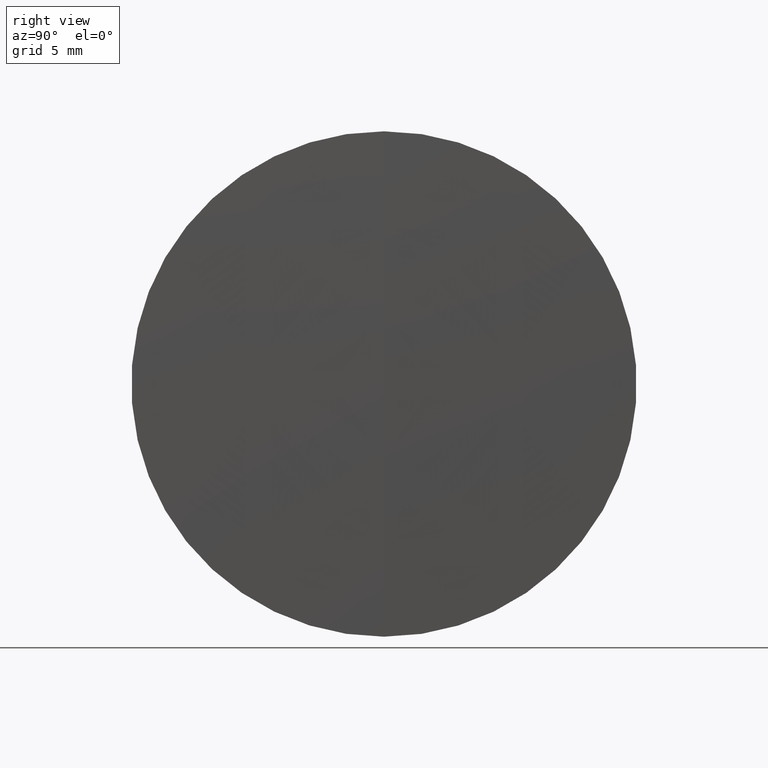
[diagram: clean part render]
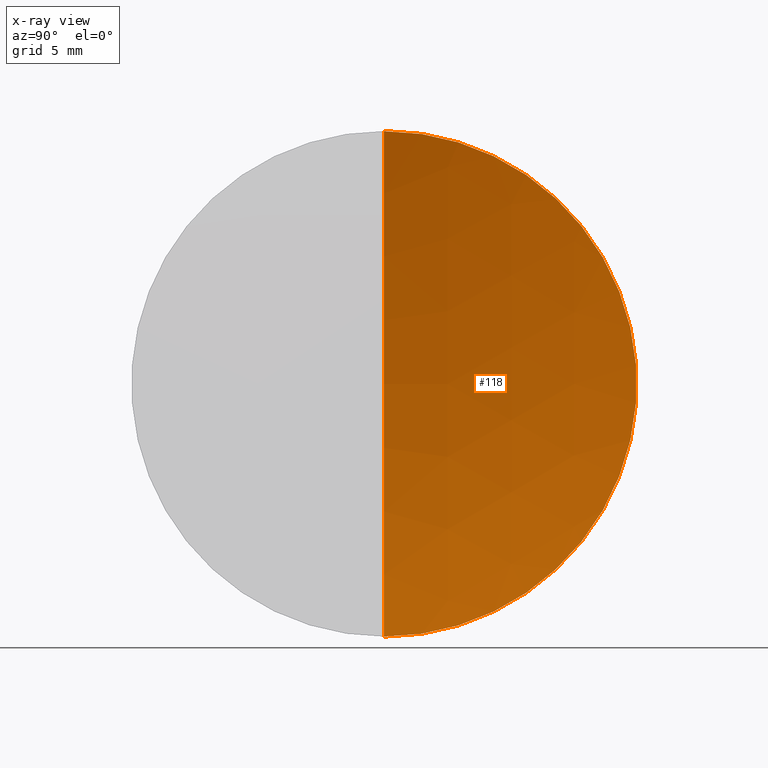
[diagram: x-ray — body ghosted, one internal face saturated and labeled with its STEP entity id]
A machine part, right view, then the same camera in x-ray: the body is ghosted and one INTERNAL B-rep face — a face not visible from any outside direction — is saturated and labeled: STEP entity #118.
In plain terms, the highlighted spherical surface has radius 46.39 mm.
Its self-contained STEP definition (entity closure, byte-faithful):
#14 = AXIS2_PLACEMENT_3D ( 'NONE', #34, #220, #133 ) ;
#15 = CARTESIAN_POINT ( 'NONE',  ( 195.1226267294905800, 0.0000000000000000000, -6.053013924752350100E-014 ) ) ;
#21 = VERTEX_POINT ( 'NONE', #272 ) ;
#23 = CARTESIAN_POINT ( 'NONE',  ( 150.5048937077423800, 1.555301434917137400E-015, -12.70000000000004400 ) ) ;
#34 = CARTESIAN_POINT ( 'NONE',  ( 195.1226267294905800, 0.0000000000000000000, -6.053013924752350100E-014 ) ) ;
#49 = AXIS2_PLACEMENT_3D ( 'NONE', #15, #169, #305 ) ;
#75 = CIRCLE ( 'NONE', #244, 12.69999999999999000 ) ;
#78 = FACE_OUTER_BOUND ( 'NONE', #319, .T. ) ;
#80 = EDGE_CURVE ( 'NONE', #208, #21, #160, .T. ) ;
#103 = CARTESIAN_POINT ( 'NONE',  ( 150.5048937077423800, 0.0000000000000000000, 12.69999999999993900 ) ) ;
#110 = CARTESIAN_POINT ( 'NONE',  ( 195.1226267294905800, 0.0000000000000000000, -6.053013924752350100E-014 ) ) ;
#118 = ADVANCED_FACE ( 'NONE', ( #78 ), #321, .F. ) ;
#133 = DIRECTION ( 'NONE',  ( 0.0000000000000000000, 1.224646799147353200E-016, -1.000000000000000000 ) ) ;
#156 = DIRECTION ( 'NONE',  ( 0.0000000000000000000, 0.0000000000000000000, -1.000000000000000000 ) ) ;
#157 = CIRCLE ( 'NONE', #49, 46.39000000000000100 ) ;
#160 = CIRCLE ( 'NONE', #14, 46.39000000000000100 ) ;
#169 = DIRECTION ( 'NONE',  ( -0.0000000000000000000, 1.000000000000000000, 0.0000000000000000000 ) ) ;
#176 = DIRECTION ( 'NONE',  ( 0.0000000000000000000, 0.0000000000000000000, 1.000000000000000000 ) ) ;
#178 = ORIENTED_EDGE ( 'NONE', *, *, #80, .T. ) ;
#205 = DIRECTION ( 'NONE',  ( -1.000000000000000000, -0.0000000000000000000, 2.184929092829751300E-016 ) ) ;
#208 = VERTEX_POINT ( 'NONE', #103 ) ;
#220 = DIRECTION ( 'NONE',  ( -2.675766419897885000E-032, -1.000000000000000000, -1.224646799147353200E-016 ) ) ;
#234 = EDGE_CURVE ( 'NONE', #208, #304, #75, .T. ) ;
#244 = AXIS2_PLACEMENT_3D ( 'NONE', #258, #205, #176 ) ;
#257 = EDGE_CURVE ( 'NONE', #304, #21, #157, .T. ) ;
#258 = CARTESIAN_POINT ( 'NONE',  ( 150.5048937077423800, 0.0000000000000000000, -5.284508487942986600E-014 ) ) ;
#272 = CARTESIAN_POINT ( 'NONE',  ( 148.7326267294905600, 0.0000000000000000000, -5.323482143650857100E-014 ) ) ;
#282 = DIRECTION ( 'NONE',  ( -0.0000000000000000000, -1.000000000000000000, -0.0000000000000000000 ) ) ;
#298 = ORIENTED_EDGE ( 'NONE', *, *, #234, .F. ) ;
#304 = VERTEX_POINT ( 'NONE', #23 ) ;
#305 = DIRECTION ( 'NONE',  ( 0.0000000000000000000, 0.0000000000000000000, 1.000000000000000000 ) ) ;
#319 = EDGE_LOOP ( 'NONE', ( #298, #178, #320 ) ) ;
#320 = ORIENTED_EDGE ( 'NONE', *, *, #257, .F. ) ;
#321 = SPHERICAL_SURFACE ( 'NONE', #330, 46.39000000000000100 ) ;
#330 = AXIS2_PLACEMENT_3D ( 'NONE', #110, #282, #156 ) ;